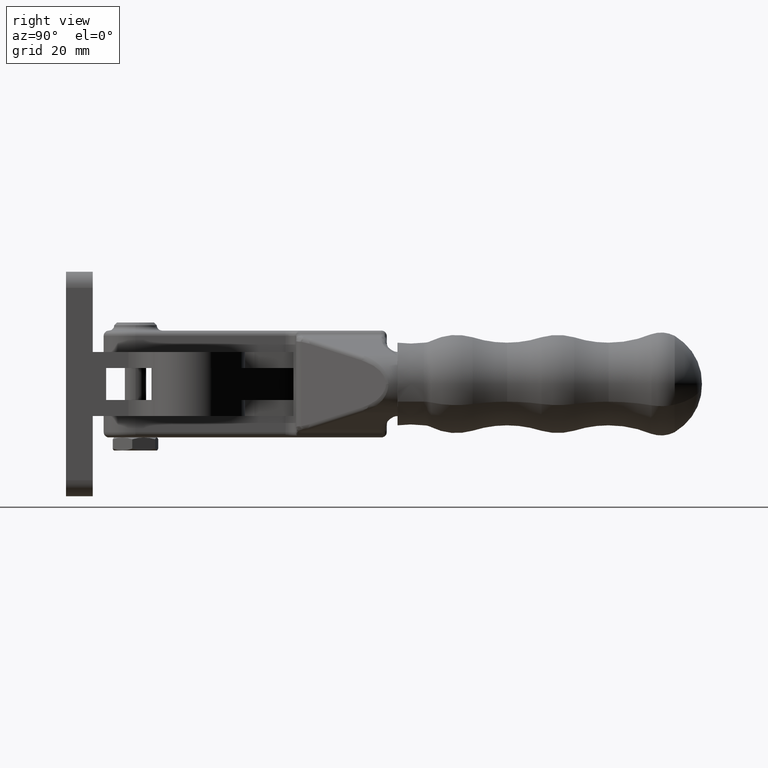
[diagram: clean part render]
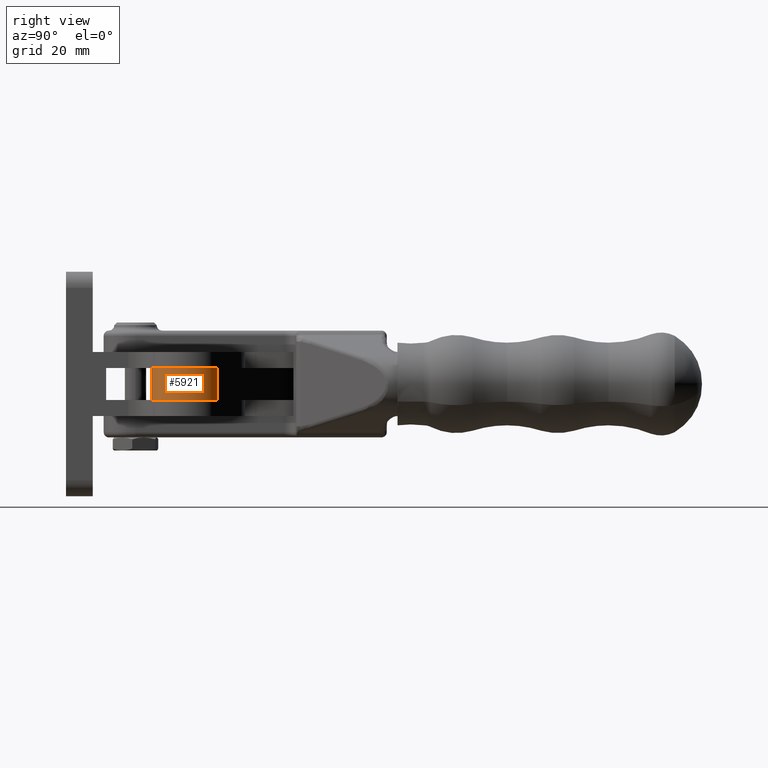
[diagram: same view with one face highlighted and labeled with its STEP entity id]
A machine part, right view. The second image highlights one B-rep face of the part: STEP entity #5921.
In plain terms, the highlighted cylindrical surface (partial cylindrical patch) has radius 7 mm, axis along (-0, -0, -1).
Its self-contained STEP definition (entity closure, byte-faithful):
#193 = ORIENTED_EDGE ( 'NONE', *, *, #1599, .T. ) ;
#348 = VERTEX_POINT ( 'NONE', #7626 ) ;
#418 = CARTESIAN_POINT ( 'NONE',  ( 4.499513267805790300, 5.362311101832849800, 3.000000000000000000 ) ) ;
#475 = DIRECTION ( 'NONE',  ( -0.0000000000000000000, -0.0000000000000000000, -1.000000000000000000 ) ) ;
#579 = DIRECTION ( 'NONE',  ( 1.000000000000000000, 0.0000000000000000000, 0.0000000000000000000 ) ) ;
#1116 = CYLINDRICAL_SURFACE ( 'NONE', #2243, 7.000000000000015100 ) ;
#1184 = VECTOR ( 'NONE', #8207, 1000.000000000000000 ) ;
#1599 = EDGE_CURVE ( 'NONE', #6508, #348, #8862, .T. ) ;
#1785 = EDGE_CURVE ( 'NONE', #348, #8363, #6870, .T. ) ;
#1900 = CARTESIAN_POINT ( 'NONE',  ( -3.589375395973696000, -6.009690862829709000, 3.000000000000000000 ) ) ;
#1927 = DIRECTION ( 'NONE',  ( -1.000000000000000000, 0.0000000000000000000, 0.0000000000000000000 ) ) ;
#1943 = CARTESIAN_POINT ( 'NONE',  ( -3.589375395973696000, -6.009690862829709000, 3.000000000000000000 ) ) ;
#2163 = CARTESIAN_POINT ( 'NONE',  ( 0.0000000000000000000, 0.0000000000000000000, 3.000000000000000000 ) ) ;
#2243 = AXIS2_PLACEMENT_3D ( 'NONE', #2627, #3999, #1927 ) ;
#2427 = EDGE_CURVE ( 'NONE', #7693, #8363, #6328, .T. ) ;
#2627 = CARTESIAN_POINT ( 'NONE',  ( 0.0000000000000000000, 0.0000000000000000000, 3.000000000000000000 ) ) ;
#2869 = DIRECTION ( 'NONE',  ( 1.000000000000000000, 0.0000000000000000000, 0.0000000000000000000 ) ) ;
#3577 = ORIENTED_EDGE ( 'NONE', *, *, #1785, .T. ) ;
#3849 = EDGE_LOOP ( 'NONE', ( #3577, #3971, #7560, #193 ) ) ;
#3971 = ORIENTED_EDGE ( 'NONE', *, *, #2427, .F. ) ;
#3999 = DIRECTION ( 'NONE',  ( -0.0000000000000000000, -0.0000000000000000000, -1.000000000000000000 ) ) ;
#4146 = AXIS2_PLACEMENT_3D ( 'NONE', #6185, #7882, #579 ) ;
#5412 = CARTESIAN_POINT ( 'NONE',  ( 4.499513267805790300, 5.362311101832849800, 3.000000000000000000 ) ) ;
#5520 = AXIS2_PLACEMENT_3D ( 'NONE', #2163, #7027, #2869 ) ;
#5921 = ADVANCED_FACE ( 'NONE', ( #6667 ), #1116, .T. ) ;
#6180 = EDGE_CURVE ( 'NONE', #6508, #7693, #7217, .T. ) ;
#6185 = CARTESIAN_POINT ( 'NONE',  ( 0.0000000000000000000, 0.0000000000000000000, -3.000000000000000000 ) ) ;
#6328 = LINE ( 'NONE', #5412, #1184 ) ;
#6508 = VERTEX_POINT ( 'NONE', #1943 ) ;
#6667 = FACE_OUTER_BOUND ( 'NONE', #3849, .T. ) ;
#6870 = CIRCLE ( 'NONE', #4146, 7.000000000000015100 ) ;
#6981 = VECTOR ( 'NONE', #475, 1000.000000000000000 ) ;
#7027 = DIRECTION ( 'NONE',  ( 0.0000000000000000000, 0.0000000000000000000, 1.000000000000000000 ) ) ;
#7217 = CIRCLE ( 'NONE', #5520, 7.000000000000015100 ) ;
#7560 = ORIENTED_EDGE ( 'NONE', *, *, #6180, .F. ) ;
#7626 = CARTESIAN_POINT ( 'NONE',  ( -3.589375395973696000, -6.009690862829709000, -3.000000000000000000 ) ) ;
#7693 = VERTEX_POINT ( 'NONE', #418 ) ;
#7882 = DIRECTION ( 'NONE',  ( 0.0000000000000000000, 0.0000000000000000000, 1.000000000000000000 ) ) ;
#8207 = DIRECTION ( 'NONE',  ( -0.0000000000000000000, -0.0000000000000000000, -1.000000000000000000 ) ) ;
#8285 = CARTESIAN_POINT ( 'NONE',  ( 4.499513267805790300, 5.362311101832849800, -3.000000000000000000 ) ) ;
#8363 = VERTEX_POINT ( 'NONE', #8285 ) ;
#8862 = LINE ( 'NONE', #1900, #6981 ) ;